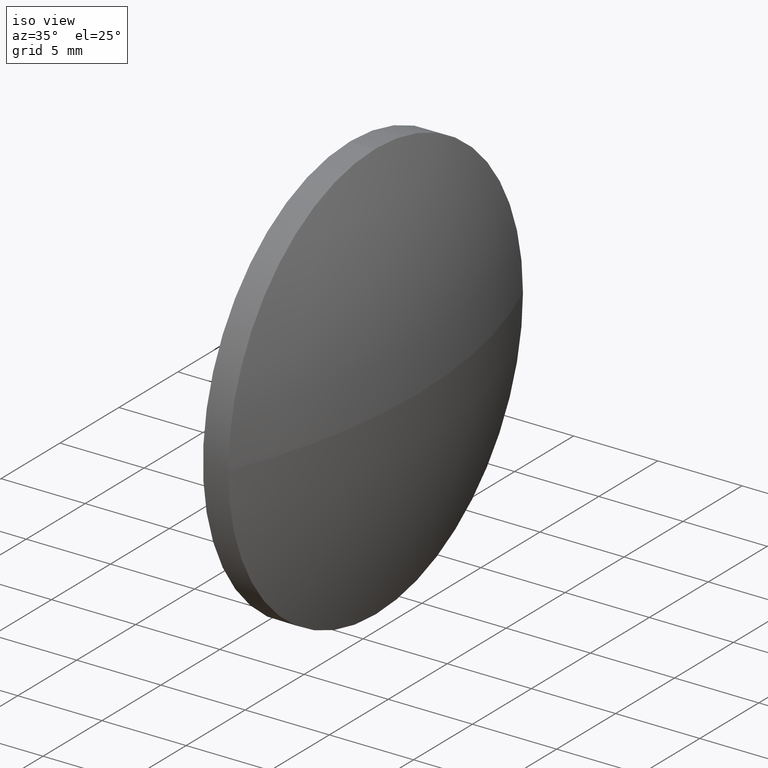
[diagram: clean part render]
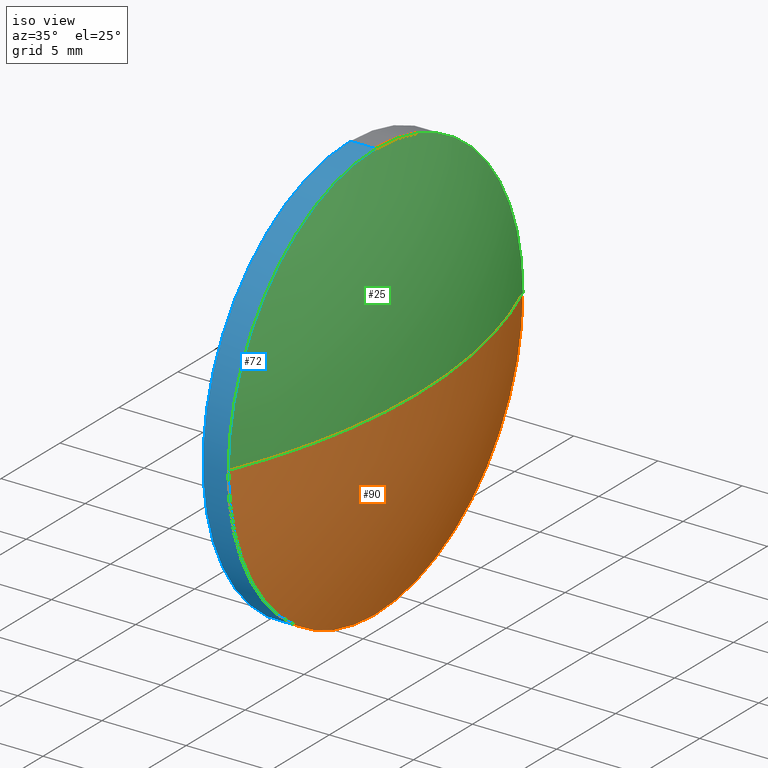
[diagram: same view with three faces highlighted in distinct colors, each labeled with its STEP entity id]
A machine part, iso view with three faces highlighted in distinct colors.
Their STEP definitions:

[orange] entity #90 — the highlighted spherical surface has radius 32.5 mm.
#2 = SPHERICAL_SURFACE ( 'NONE', #155, 32.49999999999999300 ) ;
#5 = DIRECTION ( 'NONE',  ( -1.000000000000000000, -0.0000000000000000000, -0.0000000000000000000 ) ) ;
#6 = CARTESIAN_POINT ( 'NONE',  ( 672.0488725703303300, 221.7118161881164700, 0.0000000000000000000 ) ) ;
#7 = AXIS2_PLACEMENT_3D ( 'NONE', #175, #19, #58 ) ;
#11 = DIRECTION ( 'NONE',  ( -0.0000000000000000000, 0.0000000000000000000, -1.000000000000000000 ) ) ;
#13 = ORIENTED_EDGE ( 'NONE', *, *, #24, .F. ) ;
#14 = CIRCLE ( 'NONE', #7, 32.49999999999997200 ) ;
#17 = EDGE_CURVE ( 'NONE', #156, #21, #14, .T. ) ;
#19 = DIRECTION ( 'NONE',  ( 0.0000000000000000000, 1.224646799147353200E-016, -1.000000000000000000 ) ) ;
#21 = VERTEX_POINT ( 'NONE', #31 ) ;
#22 = DIRECTION ( 'NONE',  ( -0.0000000000000000000, 0.0000000000000000000, 1.000000000000000000 ) ) ;
#24 = EDGE_CURVE ( 'NONE', #52, #165, #154, .T. ) ;
#31 = CARTESIAN_POINT ( 'NONE',  ( 669.5488725703303300, 209.2118161881165300, -1.530808498934185600E-015 ) ) ;
#37 = EDGE_CURVE ( 'NONE', #165, #21, #146, .T. ) ;
#38 = CARTESIAN_POINT ( 'NONE',  ( 639.5488725703303300, 221.7118161881164700, 0.0000000000000000000 ) ) ;
#51 = DIRECTION ( 'NONE',  ( 0.0000000000000000000, 1.000000000000000000, 0.0000000000000000000 ) ) ;
#52 = VERTEX_POINT ( 'NONE', #89 ) ;
#54 = EDGE_CURVE ( 'NONE', #156, #52, #184, .T. ) ;
#57 = ORIENTED_EDGE ( 'NONE', *, *, #37, .F. ) ;
#58 = DIRECTION ( 'NONE',  ( 0.0000000000000000000, 1.000000000000000000, 1.224646799147354200E-016 ) ) ;
#69 = CARTESIAN_POINT ( 'NONE',  ( 669.5488725703303300, 221.7118161881164700, 0.0000000000000000000 ) ) ;
#81 = FACE_OUTER_BOUND ( 'NONE', #88, .T. ) ;
#82 = ORIENTED_EDGE ( 'NONE', *, *, #54, .F. ) ;
#88 = EDGE_LOOP ( 'NONE', ( #82, #144, #57, #13 ) ) ;
#89 = CARTESIAN_POINT ( 'NONE',  ( 669.5488725703303300, 234.2118161881164200, 0.0000000000000000000 ) ) ;
#90 = ADVANCED_FACE ( 'NONE', ( #81 ), #2, .T. ) ;
#102 = AXIS2_PLACEMENT_3D ( 'NONE', #38, #22, #136 ) ;
#114 = AXIS2_PLACEMENT_3D ( 'NONE', #118, #5, #120 ) ;
#118 = CARTESIAN_POINT ( 'NONE',  ( 669.5488725703303300, 221.7118161881164700, 0.0000000000000000000 ) ) ;
#120 = DIRECTION ( 'NONE',  ( 0.0000000000000000000, 0.0000000000000000000, 1.000000000000000000 ) ) ;
#123 = CARTESIAN_POINT ( 'NONE',  ( 669.5488725703303300, 221.7118161881164700, -12.49999999999998400 ) ) ;
#136 = DIRECTION ( 'NONE',  ( 1.000000000000000000, 0.0000000000000000000, 0.0000000000000000000 ) ) ;
#138 = CARTESIAN_POINT ( 'NONE',  ( 639.5488725703303300, 221.7118161881164700, 0.0000000000000000000 ) ) ;
#144 = ORIENTED_EDGE ( 'NONE', *, *, #17, .T. ) ;
#146 = CIRCLE ( 'NONE', #114, 12.49999999999998400 ) ;
#154 = CIRCLE ( 'NONE', #166, 12.49999999999998400 ) ;
#155 = AXIS2_PLACEMENT_3D ( 'NONE', #138, #11, #51 ) ;
#156 = VERTEX_POINT ( 'NONE', #6 ) ;
#163 = DIRECTION ( 'NONE',  ( 0.0000000000000000000, 0.0000000000000000000, 1.000000000000000000 ) ) ;
#165 = VERTEX_POINT ( 'NONE', #123 ) ;
#166 = AXIS2_PLACEMENT_3D ( 'NONE', #69, #174, #163 ) ;
#174 = DIRECTION ( 'NONE',  ( -1.000000000000000000, -0.0000000000000000000, -0.0000000000000000000 ) ) ;
#175 = CARTESIAN_POINT ( 'NONE',  ( 639.5488725703303300, 221.7118161881164700, 0.0000000000000000000 ) ) ;
#184 = CIRCLE ( 'NONE', #102, 32.49999999999997200 ) ;

[blue] entity #72 — the highlighted cylindrical surface (partial cylindrical patch) has radius 12.5 mm, axis along (-1, -0, -0).
#5 = DIRECTION ( 'NONE',  ( -1.000000000000000000, -0.0000000000000000000, -0.0000000000000000000 ) ) ;
#10 = DIRECTION ( 'NONE',  ( -1.000000000000000000, -0.0000000000000000000, -0.0000000000000000000 ) ) ;
#21 = VERTEX_POINT ( 'NONE', #31 ) ;
#23 = DIRECTION ( 'NONE',  ( -1.000000000000000000, -0.0000000000000000000, -0.0000000000000000000 ) ) ;
#31 = CARTESIAN_POINT ( 'NONE',  ( 669.5488725703303300, 209.2118161881165300, -1.530808498934185600E-015 ) ) ;
#34 = DIRECTION ( 'NONE',  ( -1.000000000000000000, -0.0000000000000000000, -0.0000000000000000000 ) ) ;
#35 = FACE_OUTER_BOUND ( 'NONE', #130, .T. ) ;
#37 = EDGE_CURVE ( 'NONE', #165, #21, #146, .T. ) ;
#40 = CARTESIAN_POINT ( 'NONE',  ( 669.5488725703303300, 221.7118161881164700, 0.0000000000000000000 ) ) ;
#49 = CARTESIAN_POINT ( 'NONE',  ( 644.5807476027708800, 221.7118161881164700, 0.0000000000000000000 ) ) ;
#56 = ORIENTED_EDGE ( 'NONE', *, *, #160, .T. ) ;
#59 = EDGE_CURVE ( 'NONE', #165, #176, #140, .T. ) ;
#60 = DIRECTION ( 'NONE',  ( 0.0000000000000000000, 0.0000000000000000000, 1.000000000000000000 ) ) ;
#63 = VECTOR ( 'NONE', #23, 1000.000000000000000 ) ;
#65 = CYLINDRICAL_SURFACE ( 'NONE', #124, 12.49999999999998400 ) ;
#66 = EDGE_CURVE ( 'NONE', #176, #169, #152, .T. ) ;
#72 = ADVANCED_FACE ( 'NONE', ( #35 ), #65, .T. ) ;
#79 = EDGE_CURVE ( 'NONE', #161, #169, #186, .T. ) ;
#84 = ORIENTED_EDGE ( 'NONE', *, *, #66, .F. ) ;
#92 = DIRECTION ( 'NONE',  ( 0.0000000000000000000, 0.0000000000000000000, 1.000000000000000000 ) ) ;
#93 = AXIS2_PLACEMENT_3D ( 'NONE', #106, #151, #60 ) ;
#94 = CARTESIAN_POINT ( 'NONE',  ( 669.5488725703303300, 221.7118161881164700, 12.49999999999998400 ) ) ;
#99 = CIRCLE ( 'NONE', #107, 12.49999999999998400 ) ;
#106 = CARTESIAN_POINT ( 'NONE',  ( 668.0488725703303300, 221.7118161881164700, 0.0000000000000000000 ) ) ;
#107 = AXIS2_PLACEMENT_3D ( 'NONE', #40, #10, #92 ) ;
#111 = CARTESIAN_POINT ( 'NONE',  ( 668.0488725703303300, 221.7118161881164700, 12.49999999999998400 ) ) ;
#113 = ORIENTED_EDGE ( 'NONE', *, *, #79, .T. ) ;
#114 = AXIS2_PLACEMENT_3D ( 'NONE', #118, #5, #120 ) ;
#118 = CARTESIAN_POINT ( 'NONE',  ( 669.5488725703303300, 221.7118161881164700, 0.0000000000000000000 ) ) ;
#120 = DIRECTION ( 'NONE',  ( 0.0000000000000000000, 0.0000000000000000000, 1.000000000000000000 ) ) ;
#121 = DIRECTION ( 'NONE',  ( -1.000000000000000000, -0.0000000000000000000, -0.0000000000000000000 ) ) ;
#123 = CARTESIAN_POINT ( 'NONE',  ( 669.5488725703303300, 221.7118161881164700, -12.49999999999998400 ) ) ;
#124 = AXIS2_PLACEMENT_3D ( 'NONE', #49, #121, #167 ) ;
#130 = EDGE_LOOP ( 'NONE', ( #141, #157, #56, #113, #84 ) ) ;
#137 = CARTESIAN_POINT ( 'NONE',  ( 668.0488725703303300, 221.7118161881164700, -12.49999999999998400 ) ) ;
#140 = LINE ( 'NONE', #177, #168 ) ;
#141 = ORIENTED_EDGE ( 'NONE', *, *, #59, .F. ) ;
#146 = CIRCLE ( 'NONE', #114, 12.49999999999998400 ) ;
#151 = DIRECTION ( 'NONE',  ( -1.000000000000000000, -0.0000000000000000000, -0.0000000000000000000 ) ) ;
#152 = CIRCLE ( 'NONE', #93, 12.49999999999998400 ) ;
#157 = ORIENTED_EDGE ( 'NONE', *, *, #37, .T. ) ;
#160 = EDGE_CURVE ( 'NONE', #21, #161, #99, .T. ) ;
#161 = VERTEX_POINT ( 'NONE', #94 ) ;
#165 = VERTEX_POINT ( 'NONE', #123 ) ;
#167 = DIRECTION ( 'NONE',  ( 0.0000000000000000000, 0.0000000000000000000, 1.000000000000000000 ) ) ;
#168 = VECTOR ( 'NONE', #34, 1000.000000000000000 ) ;
#169 = VERTEX_POINT ( 'NONE', #111 ) ;
#176 = VERTEX_POINT ( 'NONE', #137 ) ;
#177 = CARTESIAN_POINT ( 'NONE',  ( 644.5807476027708800, 221.7118161881164700, -12.49999999999998400 ) ) ;
#179 = CARTESIAN_POINT ( 'NONE',  ( 644.5807476027708800, 221.7118161881164700, 12.49999999999998400 ) ) ;
#186 = LINE ( 'NONE', #179, #63 ) ;

[green] entity #25 — the highlighted spherical surface has radius 32.5 mm.
#1 = EDGE_LOOP ( 'NONE', ( #32, #150, #129, #95 ) ) ;
#4 = CARTESIAN_POINT ( 'NONE',  ( 669.5488725703303300, 221.7118161881164700, 0.0000000000000000000 ) ) ;
#6 = CARTESIAN_POINT ( 'NONE',  ( 672.0488725703303300, 221.7118161881164700, 0.0000000000000000000 ) ) ;
#7 = AXIS2_PLACEMENT_3D ( 'NONE', #175, #19, #58 ) ;
#10 = DIRECTION ( 'NONE',  ( -1.000000000000000000, -0.0000000000000000000, -0.0000000000000000000 ) ) ;
#14 = CIRCLE ( 'NONE', #7, 32.49999999999997200 ) ;
#17 = EDGE_CURVE ( 'NONE', #156, #21, #14, .T. ) ;
#19 = DIRECTION ( 'NONE',  ( 0.0000000000000000000, 1.224646799147353200E-016, -1.000000000000000000 ) ) ;
#20 = CARTESIAN_POINT ( 'NONE',  ( 639.5488725703303300, 221.7118161881164700, 0.0000000000000000000 ) ) ;
#21 = VERTEX_POINT ( 'NONE', #31 ) ;
#22 = DIRECTION ( 'NONE',  ( -0.0000000000000000000, 0.0000000000000000000, 1.000000000000000000 ) ) ;
#25 = ADVANCED_FACE ( 'NONE', ( #67 ), #101, .T. ) ;
#28 = EDGE_CURVE ( 'NONE', #161, #52, #109, .T. ) ;
#31 = CARTESIAN_POINT ( 'NONE',  ( 669.5488725703303300, 209.2118161881165300, -1.530808498934185600E-015 ) ) ;
#32 = ORIENTED_EDGE ( 'NONE', *, *, #17, .F. ) ;
#33 = DIRECTION ( 'NONE',  ( 0.0000000000000000000, 0.0000000000000000000, 1.000000000000000000 ) ) ;
#38 = CARTESIAN_POINT ( 'NONE',  ( 639.5488725703303300, 221.7118161881164700, 0.0000000000000000000 ) ) ;
#40 = CARTESIAN_POINT ( 'NONE',  ( 669.5488725703303300, 221.7118161881164700, 0.0000000000000000000 ) ) ;
#52 = VERTEX_POINT ( 'NONE', #89 ) ;
#54 = EDGE_CURVE ( 'NONE', #156, #52, #184, .T. ) ;
#55 = AXIS2_PLACEMENT_3D ( 'NONE', #20, #70, #86 ) ;
#58 = DIRECTION ( 'NONE',  ( 0.0000000000000000000, 1.000000000000000000, 1.224646799147354200E-016 ) ) ;
#67 = FACE_OUTER_BOUND ( 'NONE', #1, .T. ) ;
#70 = DIRECTION ( 'NONE',  ( -0.0000000000000000000, 0.0000000000000000000, -1.000000000000000000 ) ) ;
#83 = AXIS2_PLACEMENT_3D ( 'NONE', #4, #87, #33 ) ;
#86 = DIRECTION ( 'NONE',  ( 0.0000000000000000000, 1.000000000000000000, 0.0000000000000000000 ) ) ;
#87 = DIRECTION ( 'NONE',  ( -1.000000000000000000, -0.0000000000000000000, -0.0000000000000000000 ) ) ;
#89 = CARTESIAN_POINT ( 'NONE',  ( 669.5488725703303300, 234.2118161881164200, 0.0000000000000000000 ) ) ;
#92 = DIRECTION ( 'NONE',  ( 0.0000000000000000000, 0.0000000000000000000, 1.000000000000000000 ) ) ;
#94 = CARTESIAN_POINT ( 'NONE',  ( 669.5488725703303300, 221.7118161881164700, 12.49999999999998400 ) ) ;
#95 = ORIENTED_EDGE ( 'NONE', *, *, #160, .F. ) ;
#99 = CIRCLE ( 'NONE', #107, 12.49999999999998400 ) ;
#101 = SPHERICAL_SURFACE ( 'NONE', #55, 32.49999999999999300 ) ;
#102 = AXIS2_PLACEMENT_3D ( 'NONE', #38, #22, #136 ) ;
#107 = AXIS2_PLACEMENT_3D ( 'NONE', #40, #10, #92 ) ;
#109 = CIRCLE ( 'NONE', #83, 12.49999999999998400 ) ;
#129 = ORIENTED_EDGE ( 'NONE', *, *, #28, .F. ) ;
#136 = DIRECTION ( 'NONE',  ( 1.000000000000000000, 0.0000000000000000000, 0.0000000000000000000 ) ) ;
#150 = ORIENTED_EDGE ( 'NONE', *, *, #54, .T. ) ;
#156 = VERTEX_POINT ( 'NONE', #6 ) ;
#160 = EDGE_CURVE ( 'NONE', #21, #161, #99, .T. ) ;
#161 = VERTEX_POINT ( 'NONE', #94 ) ;
#175 = CARTESIAN_POINT ( 'NONE',  ( 639.5488725703303300, 221.7118161881164700, 0.0000000000000000000 ) ) ;
#184 = CIRCLE ( 'NONE', #102, 32.49999999999997200 ) ;